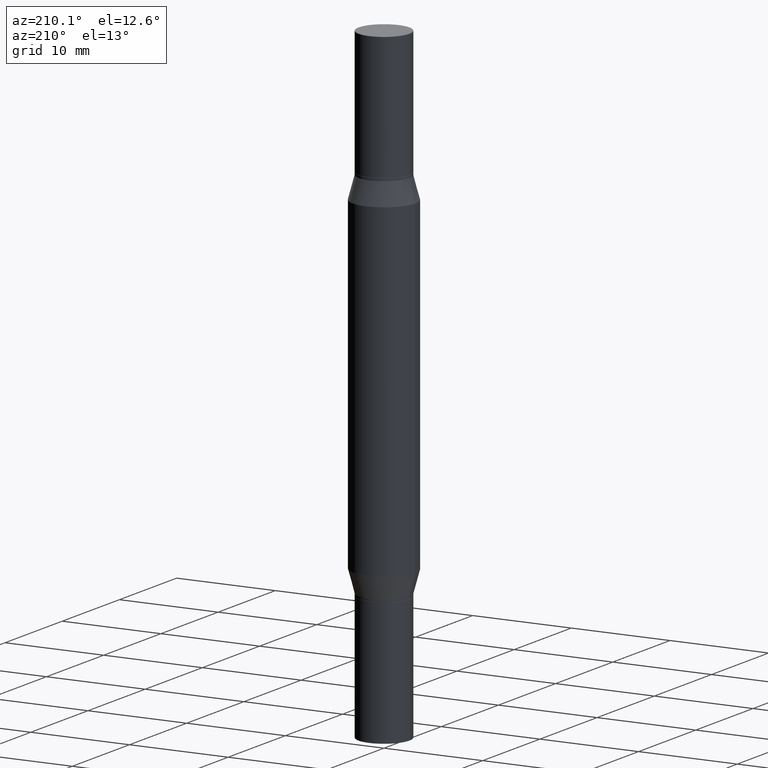
[diagram: clean part render]
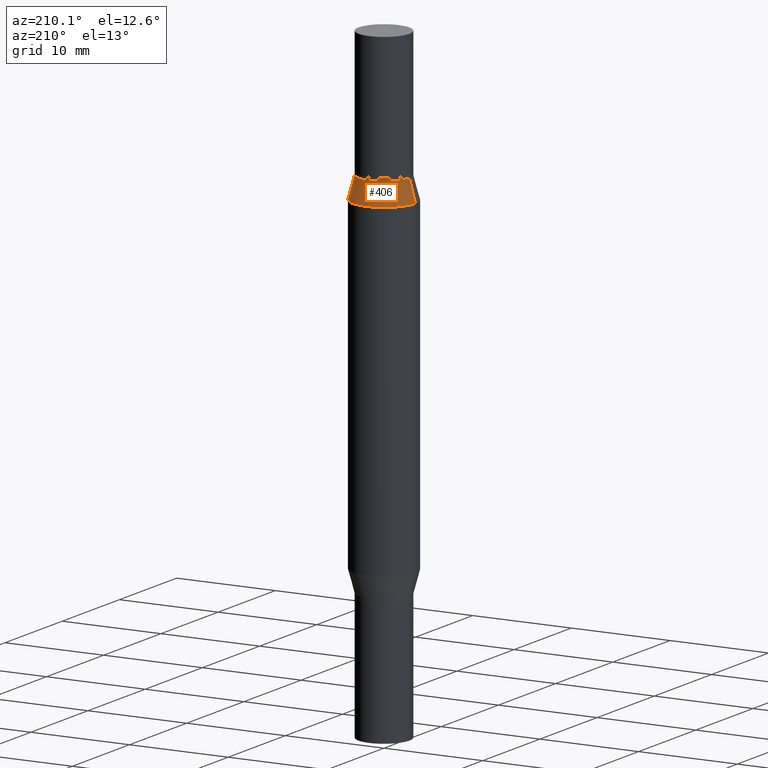
[diagram: same view with one face highlighted and labeled with its STEP entity id]
A machine part, auxiliary view. The second image highlights one B-rep face of the part: STEP entity #406.
In plain terms, the highlighted conical surface has half-angle 15 deg.
Its self-contained STEP definition (entity closure, byte-faithful):
#29 = DIRECTION ( 'NONE',  ( 1.000000000000000000, -6.982962677686268288E-15, 0.000000000000000000 ) ) ;
#39 = ORIENTED_EDGE ( 'NONE', *, *, #395, .T. ) ;
#55 = CARTESIAN_POINT ( 'NONE',  ( 0.1015499999999997377, -2.489535763201737721E-15, -0.5099999999999994538 ) ) ;
#64 = DIRECTION ( 'NONE',  ( 1.000000000000000000, -6.982962677686268288E-15, 0.000000000000000000 ) ) ;
#73 = VECTOR ( 'NONE', #656, 39.37007874015748854 ) ;
#84 = FACE_OUTER_BOUND ( 'NONE', #308, .T. ) ;
#100 = DIRECTION ( 'NONE',  ( -0.2588190451025219607, -1.597197180879709001E-15, -0.9659258262890678681 ) ) ;
#101 = ORIENTED_EDGE ( 'NONE', *, *, #499, .F. ) ;
#103 = CARTESIAN_POINT ( 'NONE',  ( -0.1015499999999997377, -1.067146257407934882E-15, -0.5099999999999994538 ) ) ;
#132 = EDGE_CURVE ( 'NONE', #166, #912, #871, .T. ) ;
#166 = VERTEX_POINT ( 'NONE', #357 ) ;
#174 = EDGE_CURVE ( 'NONE', #166, #971, #585, .T. ) ;
#175 = LINE ( 'NONE', #465, #825 ) ;
#183 = ORIENTED_EDGE ( 'NONE', *, *, #174, .F. ) ;
#308 = EDGE_LOOP ( 'NONE', ( #101, #183, #791, #39 ) ) ;
#334 = AXIS2_PLACEMENT_3D ( 'NONE', #584, #542, #762 ) ;
#357 = CARTESIAN_POINT ( 'NONE',  ( 0.1015499999999997377, -2.489535763201737721E-15, -0.5099999999999994538 ) ) ;
#364 = CIRCLE ( 'NONE', #334, 0.1250000000000000000 ) ;
#395 = EDGE_CURVE ( 'NONE', #912, #460, #364, .T. ) ;
#406 = ADVANCED_FACE ( 'NONE', ( #84 ), #507, .T. ) ;
#421 = CARTESIAN_POINT ( 'NONE',  ( 4.866482924308422209E-29, -1.780415903282698911E-15, -0.5099999999999994538 ) ) ;
#431 = DIRECTION ( 'NONE',  ( 2.445468806185136597E-29, 3.491805094961124077E-15, 1.000000000000000000 ) ) ;
#460 = VERTEX_POINT ( 'NONE', #529 ) ;
#465 = CARTESIAN_POINT ( 'NONE',  ( -0.1015499999999997377, -1.083732331609001856E-15, -0.5099999999999994538 ) ) ;
#467 = CARTESIAN_POINT ( 'NONE',  ( 0.1250000000000000000, -2.958877117868543782E-15, -0.5975165914374901410 ) ) ;
#469 = DIRECTION ( 'NONE',  ( -2.445468806185136597E-29, -3.491805094961124077E-15, -1.000000000000000000 ) ) ;
#499 = EDGE_CURVE ( 'NONE', #971, #460, #175, .T. ) ;
#505 = AXIS2_PLACEMENT_3D ( 'NONE', #421, #431, #64 ) ;
#507 = CONICAL_SURFACE ( 'NONE', #649, 0.1015499999999997377, 0.2617993877991507401 ) ;
#529 = CARTESIAN_POINT ( 'NONE',  ( -0.1250000000000000000, -1.228444533436318603E-15, -0.5975165914374901410 ) ) ;
#542 = DIRECTION ( 'NONE',  ( 2.445468806185136597E-29, 3.491805094961124077E-15, 1.000000000000000000 ) ) ;
#584 = CARTESIAN_POINT ( 'NONE',  ( 4.652463829924389037E-29, -2.086006783157758077E-15, -0.5975165914374901410 ) ) ;
#585 = CIRCLE ( 'NONE', #505, 0.1015499999999997377 ) ;
#649 = AXIS2_PLACEMENT_3D ( 'NONE', #772, #469, #29 ) ;
#656 = DIRECTION ( 'NONE',  ( 0.2588190451025219607, -5.180148453816008779E-15, -0.9659258262890678681 ) ) ;
#762 = DIRECTION ( 'NONE',  ( 1.000000000000000000, -6.982962677686266711E-15, 0.000000000000000000 ) ) ;
#772 = CARTESIAN_POINT ( 'NONE',  ( 4.866482924308422209E-29, -1.780415903282698911E-15, -0.5099999999999994538 ) ) ;
#791 = ORIENTED_EDGE ( 'NONE', *, *, #132, .T. ) ;
#825 = VECTOR ( 'NONE', #100, 39.37007874015748854 ) ;
#871 = LINE ( 'NONE', #55, #73 ) ;
#912 = VERTEX_POINT ( 'NONE', #467 ) ;
#971 = VERTEX_POINT ( 'NONE', #103 ) ;